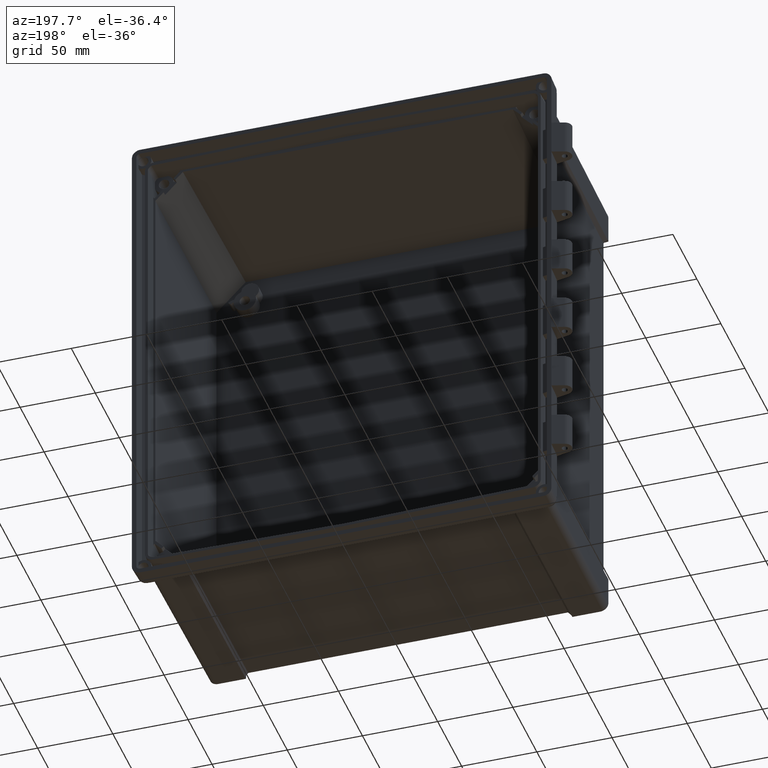
[diagram: clean part render]
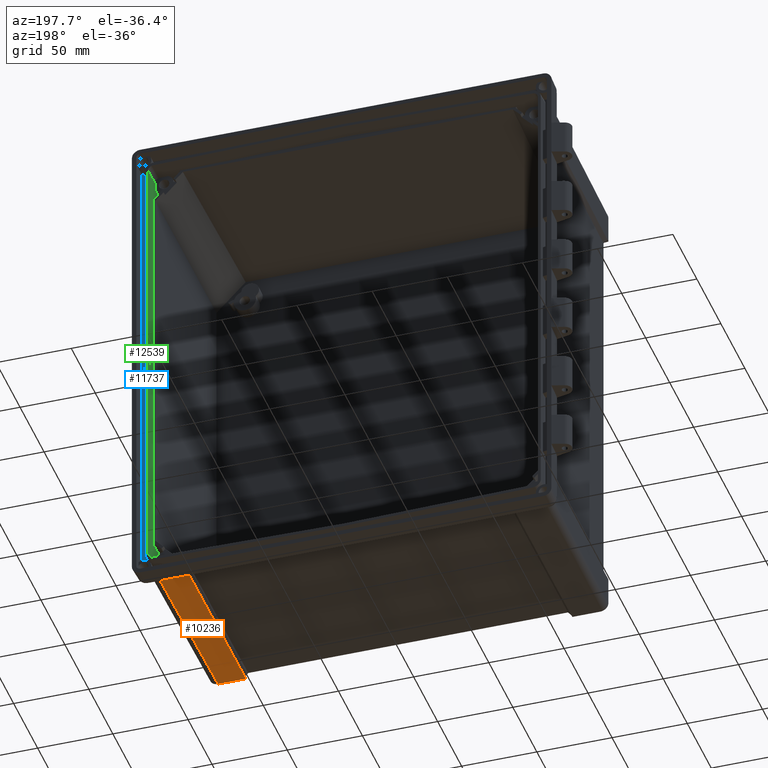
[diagram: same view with three faces highlighted in distinct colors, each labeled with its STEP entity id]
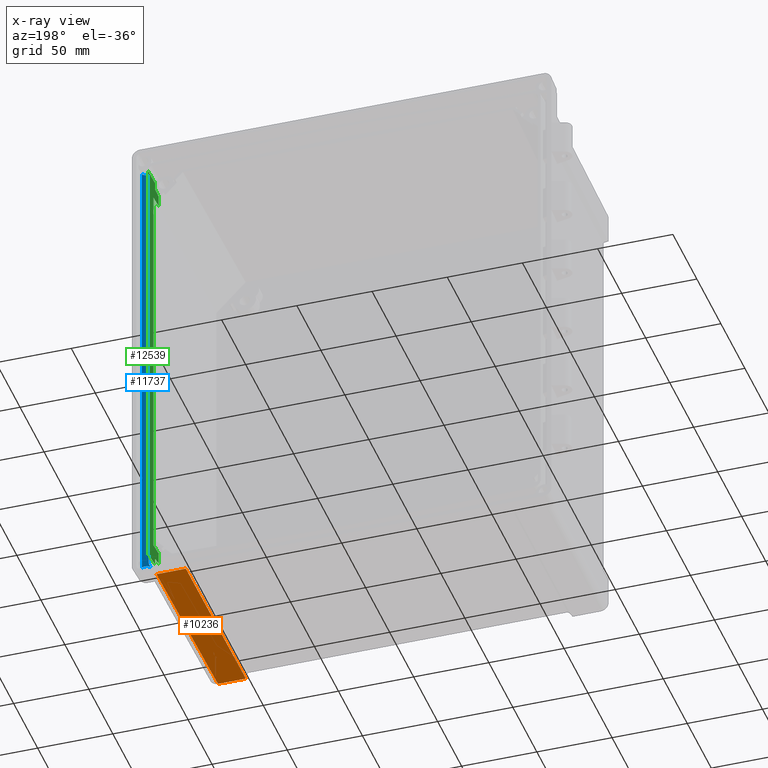
[diagram: x-ray of the same camera — body ghosted, the three highlighted faces saturated]
A machine part, auxiliary view with three faces highlighted in distinct colors.
The next image is the same camera in x-ray (body ghosted, the three faces saturated) — at least one of them is partly hidden behind the body in this view.
Their STEP definitions:

[orange] entity #10236 — the highlighted planar face has unit normal (0, 0.0087, 1).
#2212=DIRECTION('',(9.999999398038E-1,7.214103799441E-5,-3.393936328981E-4));
#2213=VECTOR('',#2212,1.717393863899E1);
#2214=CARTESIAN_POINT('',(1.086132700403E2,-1.563318770241E1,
-1.580910387008E2));
#2215=LINE('',#2214,#2213);
#2216=DIRECTION('',(9.544379271733E-4,9.999612607332E-1,-8.750204634902E-3));
#2217=VECTOR('',#2216,1.228715722581E2);
#2218=CARTESIAN_POINT('',(1.084959967516E2,-1.385000000059E2,
-1.570158872997E2));
#2219=LINE('',#2218,#2217);
#2220=DIRECTION('',(-8.315962825857E-3,9.999559025147E-1,-4.363231397240E-3));
#2221=VECTOR('',#2220,2.000088192953E0);
#2222=CARTESIAN_POINT('',(1.085126294106E2,-1.405E2,-1.570071604521E2));
#2223=LINE('',#2222,#2221);
#2224=DIRECTION('',(-1.E0,-5.551600738795E-10,-6.903060845511E-12));
#2225=VECTOR('',#2224,1.849474046638E1);
#2226=CARTESIAN_POINT('',(1.270073698770E2,-1.404999999897E2,
-1.570071604520E2));
#2227=LINE('',#2226,#2225);
#2228=DIRECTION('',(-8.726203206613E-3,-9.999238504777E-1,8.726203267790E-3));
#2229=VECTOR('',#2228,1.249298258946E2);
#2230=CARTESIAN_POINT('',(1.280975329243E2,-1.557968744170E1,
-1.580973235070E2));
#2231=LINE('',#2230,#2229);
#2232=CARTESIAN_POINT('',(1.257872076455E2,-1.563194875665E1,
-1.580968674262E2));
#2233=CARTESIAN_POINT('',(1.260416994226E2,-1.563194875667E1,
-1.580968674262E2));
#2234=CARTESIAN_POINT('',(1.265521521956E2,-1.562811309771E1,
-1.580969008996E2));
#2235=CARTESIAN_POINT('',(1.273218460638E2,-1.561076145790E1,
-1.580970523232E2));
#2236=CARTESIAN_POINT('',(1.278384380793E2,-1.559136456305E1,
-1.580972216023E2));
#2237=CARTESIAN_POINT('',(1.280975329243E2,-1.557968744170E1,
-1.580973235070E2));
#6210=CARTESIAN_POINT('',(1.084959967516E2,-1.385000000059E2,
-1.570158872997E2));
#6211=VERTEX_POINT('',#6210);
#6326=CARTESIAN_POINT('',(1.085126294106E2,-1.405E2,-1.570071604521E2));
#6328=VERTEX_POINT('',#6326);
#6341=CARTESIAN_POINT('',(1.270073698770E2,-1.404999999897E2,
-1.570071604520E2));
#6342=VERTEX_POINT('',#6341);
#6883=CARTESIAN_POINT('',(1.086132700403E2,-1.563318770241E1,
-1.580910387008E2));
#6884=VERTEX_POINT('',#6883);
#6885=CARTESIAN_POINT('',(1.257872076455E2,-1.563194875665E1,
-1.580968674262E2));
#6886=VERTEX_POINT('',#6885);
#6929=CARTESIAN_POINT('',(1.280975329243E2,-1.557968744170E1,
-1.580973235070E2));
#6930=VERTEX_POINT('',#6929);
#10222=CARTESIAN_POINT('',(1.182972234620E2,-7.803984373084E1,
-1.575522419777E2));
#10223=DIRECTION('',(0.E0,8.726535494144E-3,9.999619230642E-1));
#10224=DIRECTION('',(0.E0,9.999619230642E-1,-8.726535494144E-3));
#10225=AXIS2_PLACEMENT_3D('',#10222,#10223,#10224);
#10226=PLANE('',#10225);
#10227=ORIENTED_EDGE('',*,*,#8466,.F.);
#10229=ORIENTED_EDGE('',*,*,#10228,.F.);
#10230=ORIENTED_EDGE('',*,*,#8752,.F.);
#10231=ORIENTED_EDGE('',*,*,#8772,.F.);
#10232=ORIENTED_EDGE('',*,*,#10217,.F.);
#10233=ORIENTED_EDGE('',*,*,#8447,.F.);
#10234=EDGE_LOOP('',(#10227,#10229,#10230,#10231,#10232,#10233));
#10235=FACE_OUTER_BOUND('',#10234,.F.);
#10236=ADVANCED_FACE('',(#10235),#10226,.F.);
#2238=B_SPLINE_CURVE_WITH_KNOTS('',3,(#2232,#2233,#2234,#2235,#2236,#2237),
.UNSPECIFIED.,.F.,.F.,(4,1,1,4),(0.E0,3.333333333333E-1,6.666666666667E-1,1.E0),
.UNSPECIFIED.);
#8447=EDGE_CURVE('',#6886,#6930,#2238,.T.);
#8466=EDGE_CURVE('',#6884,#6886,#2215,.T.);
#8752=EDGE_CURVE('',#6328,#6211,#2223,.T.);
#8772=EDGE_CURVE('',#6342,#6328,#2227,.T.);
#10217=EDGE_CURVE('',#6930,#6342,#2231,.T.);
#10228=EDGE_CURVE('',#6211,#6884,#2219,.T.);

[blue] entity #11737 — the highlighted planar face has unit normal (-0.2079, 0.9781, 0).
#3092=CARTESIAN_POINT('',(1.360941774945E2,-1.052288663697E1,
-1.546599535053E2));
#3099=CARTESIAN_POINT('',(1.332499999998E2,-1.112743522689E1,
-1.538755901582E2));
#3100=CARTESIAN_POINT('',(1.335570718479E2,-1.106216509067E1,
-1.538767294527E2));
#3101=CARTESIAN_POINT('',(1.341778721861E2,-1.093020990391E1,
-1.539267662754E2));
#3102=CARTESIAN_POINT('',(1.351758937890E2,-1.071807386407E1,
-1.541895987669E2));
#3103=CARTESIAN_POINT('',(1.357922195035E2,-1.058706978931E1,
-1.544812131855E2));
#3104=CARTESIAN_POINT('',(1.360941774945E2,-1.052288663697E1,
-1.546599535053E2));
#3178=DIRECTION('',(9.366707391512E-13,0.E0,-1.E0));
#3179=VECTOR('',#3178,3.093199070103E2);
#3180=CARTESIAN_POINT('',(1.360941774942E2,-1.052288663697E1,1.546599535051E2));
#3181=LINE('',#3180,#3179);
#3280=CARTESIAN_POINT('',(1.332499999998E2,-1.112743522689E1,1.538755901582E2));
#3281=CARTESIAN_POINT('',(1.329491776095E2,-1.119137699984E1,1.538744740504E2));
#3282=CARTESIAN_POINT('',(1.323418802507E2,-1.132046203698E1,1.539205545499E2));
#3283=CARTESIAN_POINT('',(1.314216868261E2,-1.151605518773E1,1.541436615417E2));
#3284=CARTESIAN_POINT('',(1.307863569804E2,-1.165109871567E1,1.544206904514E2));
#3285=CARTESIAN_POINT('',(1.304697275397E2,-1.171840038090E1,1.545989579891E2));
#3319=CARTESIAN_POINT('',(1.304697275397E2,-1.171840038090E1,1.545989579891E2));
#3321=DIRECTION('',(3.171837905269E-13,-4.137254880999E-12,-1.E0));
#3322=VECTOR('',#3321,3.017048743039E2);
#3323=CARTESIAN_POINT('',(1.319229755109E2,-1.140950298912E1,1.508524371519E2));
#3324=LINE('',#3323,#3322);
#3333=CARTESIAN_POINT('',(1.319229755110E2,-1.140950299037E1,
-1.508524371520E2));
#3334=CARTESIAN_POINT('',(1.319229755110E2,-1.140950299037E1,
-1.513157368230E2));
#3335=CARTESIAN_POINT('',(1.318116655605E2,-1.143316264816E1,
-1.522117758520E2));
#3336=CARTESIAN_POINT('',(1.313095384883E2,-1.153989305259E1,
-1.535110639774E2));
#3337=CARTESIAN_POINT('',(1.307851598199E2,-1.165135318074E1,
-1.542536331589E2));
#3338=CARTESIAN_POINT('',(1.304697275400E2,-1.171840038161E1,
-1.545989579892E2));
#3340=CARTESIAN_POINT('',(1.304697275400E2,-1.171840038161E1,
-1.545989579892E2));
#3341=CARTESIAN_POINT('',(1.307526327356E2,-1.165826702595E1,
-1.544396777515E2));
#3342=CARTESIAN_POINT('',(1.313363230711E2,-1.153419981363E1,
-1.541741881426E2));
#3343=CARTESIAN_POINT('',(1.322815708426E2,-1.133328119751E1,
-1.539277117665E2));
#3344=CARTESIAN_POINT('',(1.329233227406E2,-1.119687262188E1,
-1.538743781240E2));
#3345=CARTESIAN_POINT('',(1.332499999998E2,-1.112743522689E1,
-1.538755901582E2));
#3347=CARTESIAN_POINT('',(1.360941774942E2,-1.052288663697E1,1.546599535051E2));
#3348=CARTESIAN_POINT('',(1.358069983190E2,-1.058392845503E1,1.544899613237E2));
#3349=CARTESIAN_POINT('',(1.352128106350E2,-1.071022694624E1,1.542057104901E2));
#3350=CARTESIAN_POINT('',(1.342448122597E2,-1.091598135203E1,1.539381362741E2));
#3351=CARTESIAN_POINT('',(1.335859516668E2,-1.105602649566E1,1.538768366022E2));
#3352=CARTESIAN_POINT('',(1.332499999998E2,-1.112743522689E1,1.538755901582E2));
#3354=CARTESIAN_POINT('',(1.304697275397E2,-1.171840038090E1,1.545989579891E2));
#3355=CARTESIAN_POINT('',(1.307855659332E2,-1.165126685795E1,1.542531885590E2));
#3356=CARTESIAN_POINT('',(1.313103379443E2,-1.153972312315E1,1.535099004338E2));
#3357=CARTESIAN_POINT('',(1.318124160309E2,-1.143300313124E1,1.522087638216E2));
#3358=CARTESIAN_POINT('',(1.319229755109E2,-1.140950298913E1,1.513144336089E2));
#3359=CARTESIAN_POINT('',(1.319229755109E2,-1.140950298912E1,1.508524371519E2));
#5889=VERTEX_POINT('',#3319);
#5890=VERTEX_POINT('',#3280);
#5924=VERTEX_POINT('',#3092);
#5925=VERTEX_POINT('',#3099);
#6301=VERTEX_POINT('',#3333);
#6302=VERTEX_POINT('',#3338);
#6303=CARTESIAN_POINT('',(1.319229755109E2,-1.140950298912E1,1.508524371519E2));
#6304=VERTEX_POINT('',#6303);
#6305=VERTEX_POINT('',#3347);
#11720=CARTESIAN_POINT('',(1.332819525177E2,-1.112064350860E1,0.E0));
#11721=DIRECTION('',(-2.079116908133E-1,9.781476007348E-1,0.E0));
#11722=DIRECTION('',(9.781476007348E-1,2.079116908133E-1,0.E0));
#11723=AXIS2_PLACEMENT_3D('',#11720,#11721,#11722);
#11724=PLANE('',#11723);
#11726=ORIENTED_EDGE('',*,*,#11725,.T.);
#11727=ORIENTED_EDGE('',*,*,#11500,.T.);
#11728=ORIENTED_EDGE('',*,*,#11522,.T.);
#11729=ORIENTED_EDGE('',*,*,#11603,.F.);
#11731=ORIENTED_EDGE('',*,*,#11730,.T.);
#11732=ORIENTED_EDGE('',*,*,#11683,.T.);
#11733=ORIENTED_EDGE('',*,*,#11698,.T.);
#11734=ORIENTED_EDGE('',*,*,#11711,.T.);
#11735=EDGE_LOOP('',(#11726,#11727,#11728,#11729,#11731,#11732,#11733,#11734));
#11736=FACE_OUTER_BOUND('',#11735,.F.);
#11737=ADVANCED_FACE('',(#11736),#11724,.T.);
#3105=B_SPLINE_CURVE_WITH_KNOTS('',3,(#3099,#3100,#3101,#3102,#3103,#3104),
.UNSPECIFIED.,.F.,.F.,(4,1,1,4),(0.E0,3.333333333333E-1,6.666666666667E-1,1.E0),
.UNSPECIFIED.);
#3286=B_SPLINE_CURVE_WITH_KNOTS('',3,(#3280,#3281,#3282,#3283,#3284,#3285),
.UNSPECIFIED.,.F.,.F.,(4,1,1,4),(0.E0,3.333333333333E-1,6.666666666667E-1,1.E0),
.UNSPECIFIED.);
#3339=B_SPLINE_CURVE_WITH_KNOTS('',3,(#3333,#3334,#3335,#3336,#3337,#3338),
.UNSPECIFIED.,.F.,.F.,(4,1,1,4),(0.E0,3.333333333333E-1,6.666666666667E-1,1.E0),
.UNSPECIFIED.);
#3346=B_SPLINE_CURVE_WITH_KNOTS('',3,(#3340,#3341,#3342,#3343,#3344,#3345),
.UNSPECIFIED.,.F.,.F.,(4,1,1,4),(0.E0,3.333333333333E-1,6.666666666667E-1,1.E0),
.UNSPECIFIED.);
#3353=B_SPLINE_CURVE_WITH_KNOTS('',3,(#3347,#3348,#3349,#3350,#3351,#3352),
.UNSPECIFIED.,.F.,.F.,(4,1,1,4),(0.E0,3.333333333333E-1,6.666666666667E-1,1.E0),
.UNSPECIFIED.);
#3360=B_SPLINE_CURVE_WITH_KNOTS('',3,(#3354,#3355,#3356,#3357,#3358,#3359),
.UNSPECIFIED.,.F.,.F.,(4,1,1,4),(0.E0,3.333333333333E-1,6.666666666667E-1,1.E0),
.UNSPECIFIED.);
#11500=EDGE_CURVE('',#6302,#5925,#3346,.T.);
#11522=EDGE_CURVE('',#5925,#5924,#3105,.T.);
#11603=EDGE_CURVE('',#6305,#5924,#3181,.T.);
#11683=EDGE_CURVE('',#5890,#5889,#3286,.T.);
#11698=EDGE_CURVE('',#5889,#6304,#3360,.T.);
#11711=EDGE_CURVE('',#6304,#6301,#3324,.T.);
#11725=EDGE_CURVE('',#6301,#6302,#3339,.T.);
#11730=EDGE_CURVE('',#6305,#5890,#3353,.T.);

[green] entity #12539 — the highlighted planar face has unit normal (0.9994, -0.0349, 0).
#191=DIRECTION('',(0.E0,0.E0,1.E0));
#192=VECTOR('',#191,3.011596261689E2);
#193=CARTESIAN_POINT('',(1.296467696098E2,-2.500000001821E0,-1.505798130844E2));
#194=LINE('',#193,#192);
#4003=DIRECTION('',(2.205640216521E-11,2.565911424799E-10,-1.E0));
#4004=VECTOR('',#4003,4.626046264974E0);
#4005=CARTESIAN_POINT('',(1.291806005182E2,-1.584933532283E1,
-1.454956637423E2));
#4006=LINE('',#4005,#4004);
#4051=DIRECTION('',(5.281863214467E-11,2.565657991006E-10,1.E0));
#4052=VECTOR('',#4051,4.626046265339E0);
#4053=CARTESIAN_POINT('',(1.291806005180E2,-1.584933532283E1,1.454956637419E2));
#4054=LINE('',#4053,#4052);
#4055=DIRECTION('',(4.932472968749E-13,0.E0,1.E0));
#4056=VECTOR('',#4055,2.733569760891E2);
#4057=CARTESIAN_POINT('',(1.292853628269E2,-1.284933531883E1,
-1.366784880213E2));
#4058=LINE('',#4057,#4056);
#4059=DIRECTION('',(-3.487899278999E-2,-9.988036076543E-1,3.427548976662E-2));
#4060=VECTOR('',#4059,1.336532549294E1);
#4061=CARTESIAN_POINT('',(1.296467696098E2,-2.500000001821E0,
-1.505798130844E2));
#4062=LINE('',#4061,#4060);
#4063=DIRECTION('',(3.487899278999E-2,9.988036076543E-1,3.427548976636E-2));
#4064=VECTOR('',#4063,1.336532549294E1);
#4065=CARTESIAN_POINT('',(1.291806005183E2,-1.584933532165E1,1.501217100073E2));
#4066=LINE('',#4065,#4064);
#4753=DIRECTION('',(-3.531007991895E-11,-7.464483307026E-11,-1.E0));
#4754=VECTOR('',#4753,7.779529875757E0);
#4755=CARTESIAN_POINT('',(1.289308938052E2,-2.3E1,-1.366412318783E2));
#4756=LINE('',#4755,#4754);
#4773=CARTESIAN_POINT('',(1.289308938049E2,-2.300000000058E1,
-1.444207617541E2));
#4774=CARTESIAN_POINT('',(1.289613596073E2,-2.212757356817E1,
-1.445314936357E2));
#4775=CARTESIAN_POINT('',(1.290204818412E2,-2.043453430762E1,
-1.447569976471E2));
#4776=CARTESIAN_POINT('',(1.291034175363E2,-1.805956673516E1,
-1.451102325086E2));
#4777=CARTESIAN_POINT('',(1.291554579901E2,-1.656932312514E1,
-1.453629726765E2));
#4778=CARTESIAN_POINT('',(1.291806005182E2,-1.584933532283E1,
-1.454956637423E2));
#4810=DIRECTION('',(-3.489926194001E-2,-9.993841037800E-1,3.668055068635E-3));
#4811=VECTOR('',#4810,1.015692028998E1);
#4812=CARTESIAN_POINT('',(1.292853628269E2,-1.284933531883E1,
-1.366784880213E2));
#4813=LINE('',#4812,#4811);
#4826=DIRECTION('',(3.489926197837E-2,9.993841037617E-1,3.668059674295E-3));
#4827=VECTOR('',#4826,1.015692029016E1);
#4828=CARTESIAN_POINT('',(1.289308938050E2,-2.3E1,1.366412318781E2));
#4829=LINE('',#4828,#4827);
#4838=DIRECTION('',(1.905611762664E-11,-1.161136266208E-10,-1.E0));
#4839=VECTOR('',#4838,7.779529875580E0);
#4840=CARTESIAN_POINT('',(1.289308938048E2,-2.299999999910E1,1.444207617537E2));
#4841=LINE('',#4840,#4839);
#4974=CARTESIAN_POINT('',(1.291806005180E2,-1.584933532283E1,1.454956637419E2));
#4975=CARTESIAN_POINT('',(1.291552466788E2,-1.657537428399E1,1.453618574701E2));
#4976=CARTESIAN_POINT('',(1.291029278043E2,-1.807359082637E1,1.451080564566E2));
#4977=CARTESIAN_POINT('',(1.290204945568E2,-2.043417018097E1,1.447571081632E2));
#4978=CARTESIAN_POINT('',(1.289613676881E2,-2.212734215961E1,1.445315230065E2));
#4979=CARTESIAN_POINT('',(1.289308938048E2,-2.299999999910E1,1.444207617537E2));
#5682=CARTESIAN_POINT('',(1.296467696098E2,-2.500000001821E0,1.505798130844E2));
#5725=CARTESIAN_POINT('',(1.296467696098E2,-2.500000001821E0,
-1.505798130844E2));
#5727=CARTESIAN_POINT('',(1.291806005183E2,-1.584933532165E1,
-1.501217100073E2));
#6089=VERTEX_POINT('',#5682);
#6091=CARTESIAN_POINT('',(1.291806005183E2,-1.584933532165E1,1.501217100073E2));
#6092=VERTEX_POINT('',#6091);
#6095=VERTEX_POINT('',#5725);
#6098=VERTEX_POINT('',#5727);
#6286=CARTESIAN_POINT('',(1.292853628269E2,-1.284933531883E1,
-1.366784880213E2));
#6287=VERTEX_POINT('',#6286);
#6288=CARTESIAN_POINT('',(1.292853628271E2,-1.284933531883E1,1.366784880678E2));
#6289=VERTEX_POINT('',#6288);
#6436=CARTESIAN_POINT('',(1.291806005166E2,-1.584933532200E1,1.454956637777E2));
#6437=VERTEX_POINT('',#6436);
#6455=CARTESIAN_POINT('',(1.291806005166E2,-1.584933532200E1,
-1.454956637777E2));
#6457=VERTEX_POINT('',#6455);
#6458=VERTEX_POINT('',#4773);
#6518=CARTESIAN_POINT('',(1.289308938045E2,-2.299999999729E1,1.444207617181E2));
#6520=VERTEX_POINT('',#6518);
#6525=CARTESIAN_POINT('',(1.289308938050E2,-2.3E1,1.366412318781E2));
#6526=VERTEX_POINT('',#6525);
#6527=CARTESIAN_POINT('',(1.289308938052E2,-2.3E1,-1.366412318783E2));
#6528=VERTEX_POINT('',#6527);
#12510=CARTESIAN_POINT('',(1.292888316925E2,-1.275E1,0.E0));
#12511=DIRECTION('',(9.993908270184E-1,-3.489949672291E-2,0.E0));
#12512=DIRECTION('',(-3.489949672291E-2,-9.993908270184E-1,0.E0));
#12513=AXIS2_PLACEMENT_3D('',#12510,#12511,#12512);
#12514=PLANE('',#12513);
#12516=ORIENTED_EDGE('',*,*,#12515,.F.);
#12518=ORIENTED_EDGE('',*,*,#12517,.T.);
#12520=ORIENTED_EDGE('',*,*,#12519,.T.);
#12522=ORIENTED_EDGE('',*,*,#12521,.T.);
#12524=ORIENTED_EDGE('',*,*,#12523,.F.);
#12526=ORIENTED_EDGE('',*,*,#12525,.T.);
#12528=ORIENTED_EDGE('',*,*,#12527,.T.);
#12530=ORIENTED_EDGE('',*,*,#12529,.T.);
#12531=ORIENTED_EDGE('',*,*,#12482,.T.);
#12533=ORIENTED_EDGE('',*,*,#12532,.F.);
#12534=ORIENTED_EDGE('',*,*,#7290,.T.);
#12536=ORIENTED_EDGE('',*,*,#12535,.F.);
#12537=EDGE_LOOP('',(#12516,#12518,#12520,#12522,#12524,#12526,#12528,#12530,
#12531,#12533,#12534,#12536));
#12538=FACE_OUTER_BOUND('',#12537,.F.);
#12539=ADVANCED_FACE('',(#12538),#12514,.F.);
#4779=B_SPLINE_CURVE_WITH_KNOTS('',3,(#4773,#4774,#4775,#4776,#4777,#4778),
.UNSPECIFIED.,.F.,.F.,(4,1,1,4),(0.E0,3.333333333333E-1,6.666666666667E-1,1.E0),
.UNSPECIFIED.);
#4980=B_SPLINE_CURVE_WITH_KNOTS('',3,(#4974,#4975,#4976,#4977,#4978,#4979),
.UNSPECIFIED.,.F.,.F.,(4,1,1,4),(0.E0,3.333333333333E-1,6.666666666667E-1,1.E0),
.UNSPECIFIED.);
#7290=EDGE_CURVE('',#6095,#6089,#194,.T.);
#12482=EDGE_CURVE('',#6457,#6098,#4006,.T.);
#12515=EDGE_CURVE('',#6437,#6092,#4054,.T.);
#12517=EDGE_CURVE('',#6437,#6520,#4980,.T.);
#12519=EDGE_CURVE('',#6520,#6526,#4841,.T.);
#12521=EDGE_CURVE('',#6526,#6289,#4829,.T.);
#12523=EDGE_CURVE('',#6287,#6289,#4058,.T.);
#12525=EDGE_CURVE('',#6287,#6528,#4813,.T.);
#12527=EDGE_CURVE('',#6528,#6458,#4756,.T.);
#12529=EDGE_CURVE('',#6458,#6457,#4779,.T.);
#12532=EDGE_CURVE('',#6095,#6098,#4062,.T.);
#12535=EDGE_CURVE('',#6092,#6089,#4066,.T.);